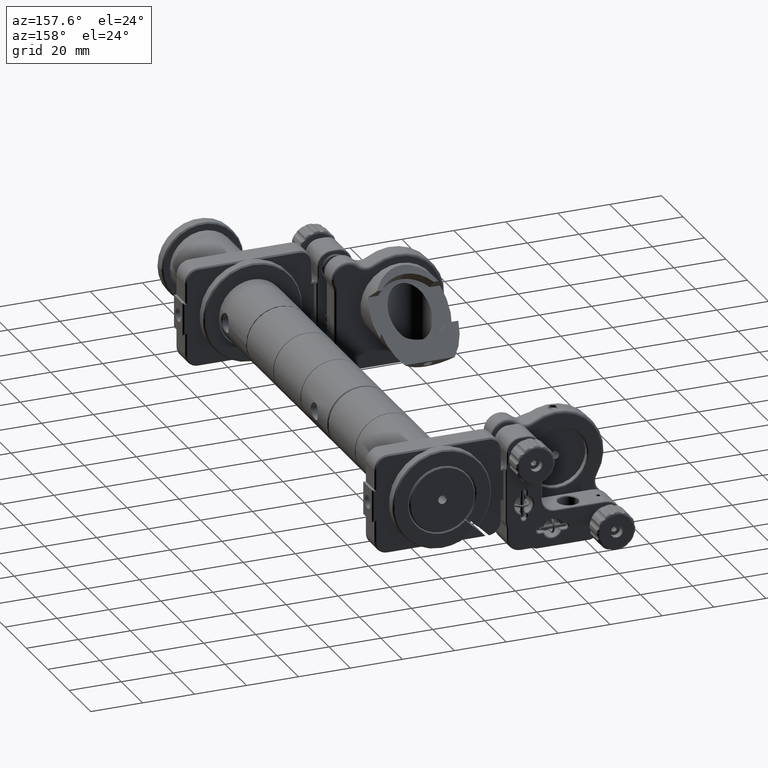
[diagram: clean part render]
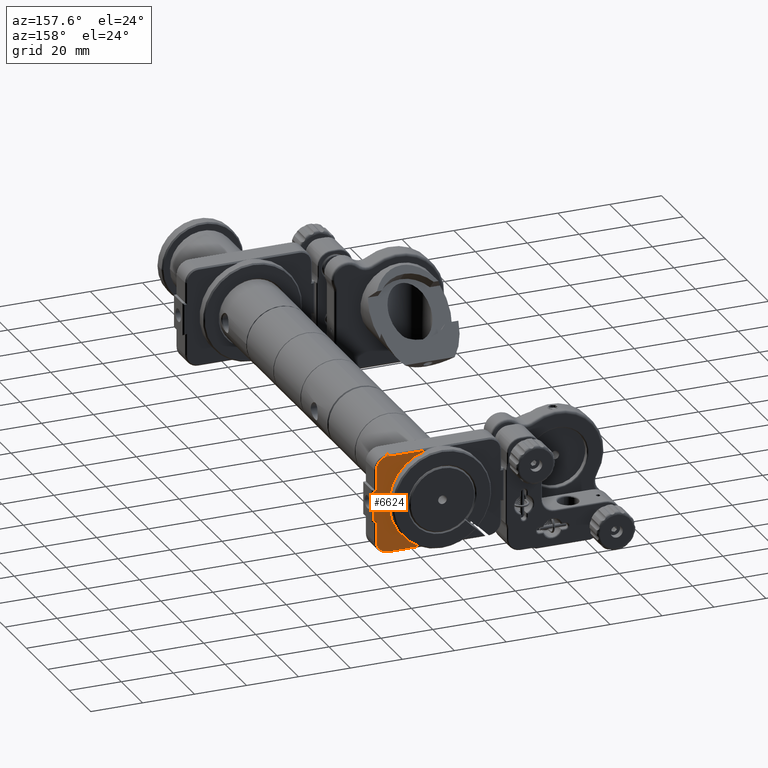
[diagram: same view with one face highlighted and labeled with its STEP entity id]
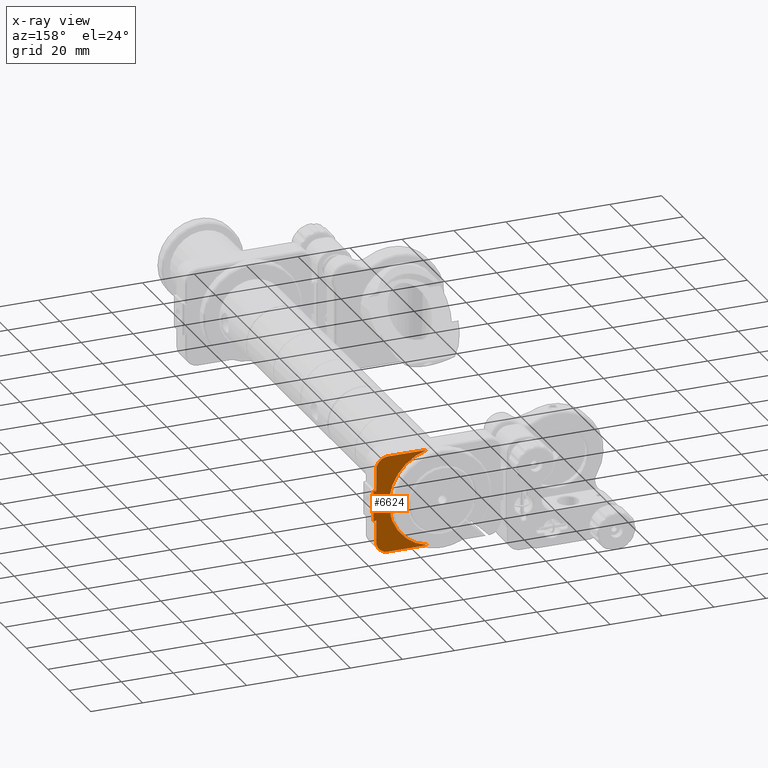
[diagram: x-ray of the same camera — body ghosted, the highlighted face saturated]
A machine part, auxiliary view. The second image highlights one B-rep face of the part: STEP entity #6624.
The next image is the same camera in x-ray: the body ghosted, the highlighted face saturated — about 0% of this face is hidden behind the body in this view.
In plain terms, the highlighted planar face has unit normal (0, 1, 0).
Its self-contained STEP definition (entity closure, byte-faithful):
#2442 = ORIENTED_EDGE ( 'NONE', *, *, #39243, .T. ) ;
#2909 = CIRCLE ( 'NONE', #16521, 4.500000000000012400 ) ;
#4197 = CARTESIAN_POINT ( 'NONE',  ( 24.90000000000003400, 16.58529747524598000, 5.750000000000044400 ) ) ;
#4327 = LINE ( 'NONE', #18451, #14438 ) ;
#4600 = DIRECTION ( 'NONE',  ( 6.113343449698786500E-016, 0.0000000000000000000, -1.000000000000000000 ) ) ;
#5361 = VERTEX_POINT ( 'NONE', #54619 ) ;
#6624 = ADVANCED_FACE ( 'NONE', ( #24917 ), #10287, .T. ) ;
#6854 = VERTEX_POINT ( 'NONE', #15663 ) ;
#7309 = ORIENTED_EDGE ( 'NONE', *, *, #17755, .T. ) ;
#8724 = DIRECTION ( 'NONE',  ( -1.000000000000000000, 0.0000000000000000000, -1.665334536937734800E-016 ) ) ;
#10017 = CIRCLE ( 'NONE', #37039, 4.500000000000007100 ) ;
#10287 = PLANE ( 'NONE',  #23666 ) ;
#10493 = DIRECTION ( 'NONE',  ( 0.0000000000000000000, 1.000000000000000000, 0.0000000000000000000 ) ) ;
#11062 = CARTESIAN_POINT ( 'NONE',  ( 23.90000000000003400, 16.58529747524598000, -5.749999999999969800 ) ) ;
#11374 = EDGE_CURVE ( 'NONE', #6854, #21045, #46131, .T. ) ;
#11425 = CARTESIAN_POINT ( 'NONE',  ( 19.40000000000002000, 16.58529747524598000, 14.05000000000002200 ) ) ;
#12237 = LINE ( 'NONE', #57856, #37250 ) ;
#12548 = EDGE_CURVE ( 'NONE', #53376, #5361, #2909, .T. ) ;
#12612 = EDGE_CURVE ( 'NONE', #40750, #24870, #35954, .T. ) ;
#14333 = LINE ( 'NONE', #18419, #40151 ) ;
#14438 = VECTOR ( 'NONE', #4600, 1000.000000000000000 ) ;
#14526 = CARTESIAN_POINT ( 'NONE',  ( 24.90000000000003400, 16.58529747524598000, -6.249999999999962700 ) ) ;
#14867 = ORIENTED_EDGE ( 'NONE', *, *, #22994, .T. ) ;
#15663 = CARTESIAN_POINT ( 'NONE',  ( 4.335896677735797200, 16.58529747524598000, 18.55000000000003600 ) ) ;
#15808 = EDGE_LOOP ( 'NONE', ( #23336, #16091, #54698, #28597, #7309, #2442, #18031, #20103, #24269, #14867 ) ) ;
#16091 = ORIENTED_EDGE ( 'NONE', *, *, #18065, .T. ) ;
#16107 = DIRECTION ( 'NONE',  ( 0.0000000000000000000, 0.0000000000000000000, -1.000000000000000000 ) ) ;
#16223 = DIRECTION ( 'NONE',  ( 1.665334536937735800E-016, 0.0000000000000000000, -1.000000000000000000 ) ) ;
#16348 = DIRECTION ( 'NONE',  ( 1.000000000000000000, 0.0000000000000000000, 1.665334536937734800E-016 ) ) ;
#16521 = AXIS2_PLACEMENT_3D ( 'NONE', #35322, #38949, #16107 ) ;
#16994 = CARTESIAN_POINT ( 'NONE',  ( 23.90000000000003400, 16.58529747524598000, -14.04999999999995100 ) ) ;
#17322 = EDGE_CURVE ( 'NONE', #6854, #30065, #12237, .T. ) ;
#17755 = EDGE_CURVE ( 'NONE', #30065, #55485, #10017, .T. ) ;
#18031 = ORIENTED_EDGE ( 'NONE', *, *, #12612, .T. ) ;
#18065 = EDGE_CURVE ( 'NONE', #5361, #21045, #14333, .T. ) ;
#18419 = CARTESIAN_POINT ( 'NONE',  ( 2.402407086218700400E-014, 16.58529747524598000, -18.54999999999996900 ) ) ;
#18451 = CARTESIAN_POINT ( 'NONE',  ( 23.90000000000003400, 16.58529747524598000, 6.250000000000037300 ) ) ;
#19545 = CARTESIAN_POINT ( 'NONE',  ( 19.05000000000002900, 16.58529747524598000, -9.515858424586493300E-014 ) ) ;
#20103 = ORIENTED_EDGE ( 'NONE', *, *, #43644, .T. ) ;
#21045 = VERTEX_POINT ( 'NONE', #45483 ) ;
#21145 = CARTESIAN_POINT ( 'NONE',  ( 19.40000000000002000, 16.58529747524598000, 18.55000000000003600 ) ) ;
#21856 = CARTESIAN_POINT ( 'NONE',  ( 2.775557561562891400E-014, 16.58529747524598000, 3.469446951953614200E-014 ) ) ;
#22994 = EDGE_CURVE ( 'NONE', #51839, #53376, #23621, .T. ) ;
#23336 = ORIENTED_EDGE ( 'NONE', *, *, #12548, .T. ) ;
#23621 = LINE ( 'NONE', #51619, #55916 ) ;
#23666 = AXIS2_PLACEMENT_3D ( 'NONE', #19545, #10493, #42619 ) ;
#24269 = ORIENTED_EDGE ( 'NONE', *, *, #52062, .T. ) ;
#24870 = VERTEX_POINT ( 'NONE', #4197 ) ;
#24917 = FACE_OUTER_BOUND ( 'NONE', #15808, .T. ) ;
#26427 = DIRECTION ( 'NONE',  ( 0.0000000000000000000, 1.000000000000000000, 0.0000000000000000000 ) ) ;
#26476 = CARTESIAN_POINT ( 'NONE',  ( 25.40000000000002700, 16.58529747524598000, 5.750000000000044400 ) ) ;
#28597 = ORIENTED_EDGE ( 'NONE', *, *, #17322, .T. ) ;
#30065 = VERTEX_POINT ( 'NONE', #21145 ) ;
#30184 = VERTEX_POINT ( 'NONE', #49385 ) ;
#31580 = LINE ( 'NONE', #36228, #56004 ) ;
#33552 = DIRECTION ( 'NONE',  ( 1.665334536937734800E-016, 0.0000000000000000000, -1.000000000000000000 ) ) ;
#35322 = CARTESIAN_POINT ( 'NONE',  ( 19.40000000000003100, 16.58529747524598000, -14.04999999999994900 ) ) ;
#35954 = LINE ( 'NONE', #26476, #51746 ) ;
#36228 = CARTESIAN_POINT ( 'NONE',  ( 24.40000000000002700, 16.58529747524598000, -5.749999999999969800 ) ) ;
#37039 = AXIS2_PLACEMENT_3D ( 'NONE', #11425, #48324, #48136 ) ;
#37250 = VECTOR ( 'NONE', #16348, 1000.000000000000000 ) ;
#38949 = DIRECTION ( 'NONE',  ( 0.0000000000000000000, 1.000000000000000000, 0.0000000000000000000 ) ) ;
#39243 = EDGE_CURVE ( 'NONE', #55485, #40750, #4327, .T. ) ;
#40151 = VECTOR ( 'NONE', #55722, 1000.000000000000000 ) ;
#40750 = VERTEX_POINT ( 'NONE', #57120 ) ;
#42619 = DIRECTION ( 'NONE',  ( 1.665334536937734800E-016, 0.0000000000000000000, -1.000000000000000000 ) ) ;
#43411 = CARTESIAN_POINT ( 'NONE',  ( 23.90000000000003100, 16.58529747524598000, 14.05000000000002400 ) ) ;
#43644 = EDGE_CURVE ( 'NONE', #24870, #30184, #55875, .T. ) ;
#45483 = CARTESIAN_POINT ( 'NONE',  ( 4.335896677735783900, 16.58529747524598000, -18.54999999999996500 ) ) ;
#46017 = DIRECTION ( 'NONE',  ( 1.665334536937734800E-016, 0.0000000000000000000, -1.000000000000000000 ) ) ;
#46131 = CIRCLE ( 'NONE', #49863, 19.05000000000000100 ) ;
#48136 = DIRECTION ( 'NONE',  ( 0.0000000000000000000, 0.0000000000000000000, -1.000000000000000000 ) ) ;
#48324 = DIRECTION ( 'NONE',  ( 0.0000000000000000000, 1.000000000000000000, 0.0000000000000000000 ) ) ;
#49385 = CARTESIAN_POINT ( 'NONE',  ( 24.90000000000003400, 16.58529747524598000, -5.749999999999969800 ) ) ;
#49748 = DIRECTION ( 'NONE',  ( 1.000000000000000000, 0.0000000000000000000, 1.665334536937734800E-016 ) ) ;
#49863 = AXIS2_PLACEMENT_3D ( 'NONE', #21856, #26427, #16223 ) ;
#51619 = CARTESIAN_POINT ( 'NONE',  ( 23.90000000000003400, 16.58529747524598000, -14.04999999999995100 ) ) ;
#51746 = VECTOR ( 'NONE', #49748, 1000.000000000000000 ) ;
#51839 = VERTEX_POINT ( 'NONE', #11062 ) ;
#52062 = EDGE_CURVE ( 'NONE', #30184, #51839, #31580, .T. ) ;
#53376 = VERTEX_POINT ( 'NONE', #16994 ) ;
#54434 = VECTOR ( 'NONE', #46017, 1000.000000000000000 ) ;
#54619 = CARTESIAN_POINT ( 'NONE',  ( 19.40000000000003100, 16.58529747524598000, -18.54999999999996200 ) ) ;
#54698 = ORIENTED_EDGE ( 'NONE', *, *, #11374, .F. ) ;
#55485 = VERTEX_POINT ( 'NONE', #43411 ) ;
#55722 = DIRECTION ( 'NONE',  ( -1.000000000000000000, 0.0000000000000000000, 2.011592858998334500E-016 ) ) ;
#55875 = LINE ( 'NONE', #14526, #54434 ) ;
#55916 = VECTOR ( 'NONE', #33552, 1000.000000000000000 ) ;
#56004 = VECTOR ( 'NONE', #8724, 1000.000000000000000 ) ;
#57120 = CARTESIAN_POINT ( 'NONE',  ( 23.90000000000003400, 16.58529747524598000, 5.750000000000044400 ) ) ;
#57856 = CARTESIAN_POINT ( 'NONE',  ( 19.40000000000002000, 16.58529747524598000, 18.55000000000003600 ) ) ;